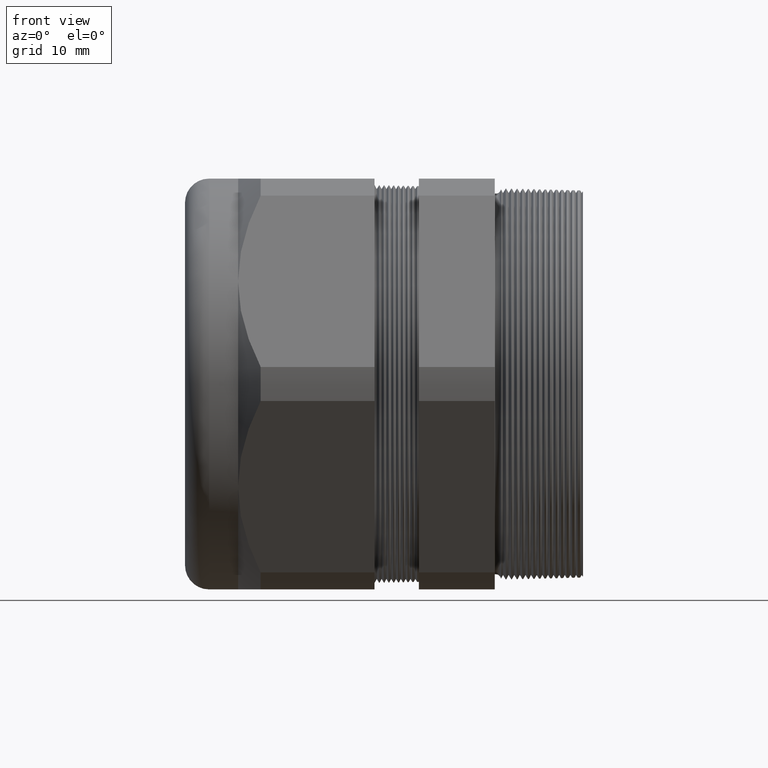
[diagram: clean part render]
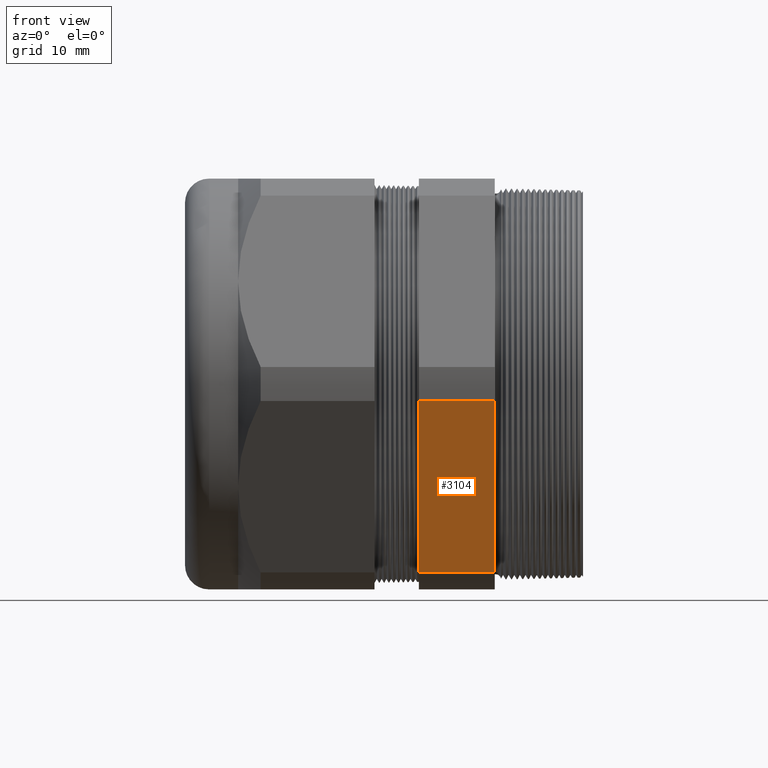
[diagram: same view with one face highlighted and labeled with its STEP entity id]
A machine part, front view. The second image highlights one B-rep face of the part: STEP entity #3104.
In plain terms, the highlighted planar face has unit normal (0, -0.866, -0.5).
Its self-contained STEP definition (entity closure, byte-faithful):
#136 = LINE ( 'NONE', #200, #199 ) ;
#141 = CARTESIAN_POINT ( 'NONE',  ( -0.3100000000000000000, -1.416843767287496500, -0.1059546086707612000 ) ) ;
#197 = CARTESIAN_POINT ( 'NONE',  ( -0.3100000000000000000, -0.8001812664006657800, -1.174045391329239500 ) ) ;
#198 = DIRECTION ( 'NONE',  ( 0.0000000000000000000, 0.4999999999999998900, -0.8660254037844386000 ) ) ;
#199 = VECTOR ( 'NONE', #198, 39.37007874015748900 ) ;
#200 = CARTESIAN_POINT ( 'NONE',  ( -0.3100000000000000000, -0.4685125168440815200, -1.748512516844081400 ) ) ;
#426 = CARTESIAN_POINT ( 'NONE',  ( -0.7824400000000001400, -0.4685125168440815200, -1.748512516844081400 ) ) ;
#427 = LINE ( 'NONE', #426, #489 ) ;
#434 = CARTESIAN_POINT ( 'NONE',  ( -0.7824400000000001400, -1.416843767287496500, -0.1059546086707612000 ) ) ;
#435 = DIRECTION ( 'NONE',  ( -1.000000000000000000, 0.0000000000000000000, 0.0000000000000000000 ) ) ;
#436 = VECTOR ( 'NONE', #435, 39.37007874015748100 ) ;
#437 = CARTESIAN_POINT ( 'NONE',  ( 0.2400000000000001900, -1.416843767287496500, -0.1059546086707612000 ) ) ;
#438 = LINE ( 'NONE', #437, #436 ) ;
#488 = DIRECTION ( 'NONE',  ( 0.0000000000000000000, -0.4999999999999998900, 0.8660254037844386000 ) ) ;
#489 = VECTOR ( 'NONE', #488, 39.37007874015748900 ) ;
#561 = DIRECTION ( 'NONE',  ( 0.0000000000000000000, 0.4999999999999998900, -0.8660254037844386000 ) ) ;
#562 = DIRECTION ( 'NONE',  ( 0.0000000000000000000, -0.8660254037844387100, -0.4999999999999999400 ) ) ;
#563 = CARTESIAN_POINT ( 'NONE',  ( 0.2400000000000001900, -0.8001812664006662200, -1.174045391329239000 ) ) ;
#564 = AXIS2_PLACEMENT_3D ( 'NONE', #563, #562, #561 ) ;
#565 = PLANE ( 'NONE',  #564 ) ;
#566 = FACE_OUTER_BOUND ( 'NONE', #3106, .T. ) ;
#572 = CARTESIAN_POINT ( 'NONE',  ( -0.7824400000000001400, -0.8001812664006657800, -1.174045391329239500 ) ) ;
#2083 = EDGE_CURVE ( 'NONE', #2893, #3100, #4251, .T. ) ;
#2888 = VERTEX_POINT ( 'NONE', #141 ) ;
#2892 = EDGE_CURVE ( 'NONE', #2888, #2893, #136, .T. ) ;
#2893 = VERTEX_POINT ( 'NONE', #197 ) ;
#3034 = EDGE_CURVE ( 'NONE', #2888, #3035, #438, .T. ) ;
#3035 = VERTEX_POINT ( 'NONE', #434 ) ;
#3038 = ORIENTED_EDGE ( 'NONE', *, *, #3040, .F. ) ;
#3040 = EDGE_CURVE ( 'NONE', #3100, #3035, #427, .T. ) ;
#3100 = VERTEX_POINT ( 'NONE', #572 ) ;
#3104 = ADVANCED_FACE ( 'NONE', ( #566 ), #565, .T. ) ;
#3106 = EDGE_LOOP ( 'NONE', ( #3109, #3111, #5788, #3038 ) ) ;
#3109 = ORIENTED_EDGE ( 'NONE', *, *, #2083, .F. ) ;
#3111 = ORIENTED_EDGE ( 'NONE', *, *, #2892, .F. ) ;
#4248 = DIRECTION ( 'NONE',  ( -1.000000000000000000, 0.0000000000000000000, 0.0000000000000000000 ) ) ;
#4249 = VECTOR ( 'NONE', #4248, 39.37007874015748100 ) ;
#4250 = CARTESIAN_POINT ( 'NONE',  ( 0.2400000000000001900, -0.8001812664006657800, -1.174045391329239500 ) ) ;
#4251 = LINE ( 'NONE', #4250, #4249 ) ;
#5788 = ORIENTED_EDGE ( 'NONE', *, *, #3034, .T. ) ;